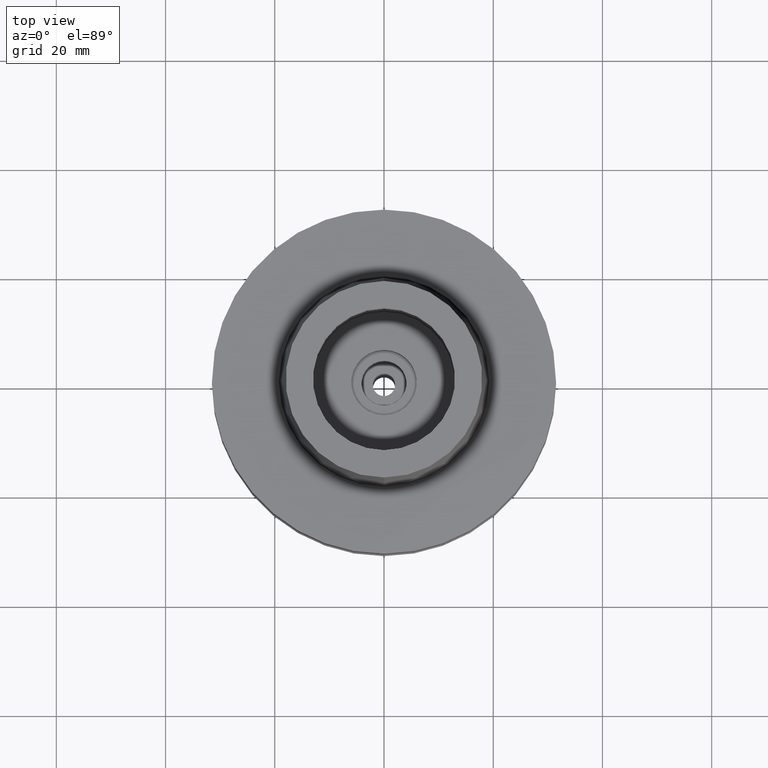
[diagram: clean part render]
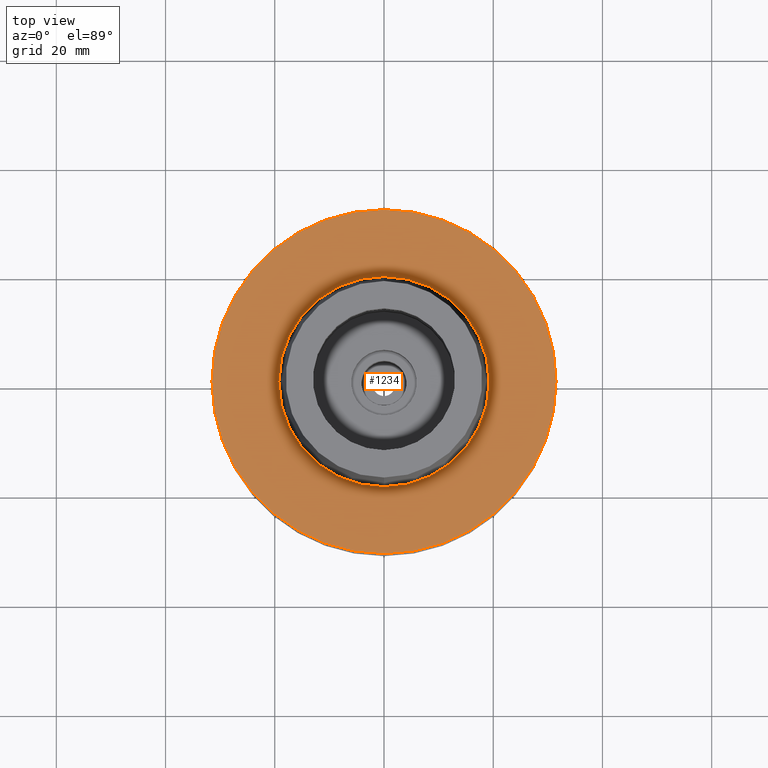
[diagram: same view with one face highlighted and labeled with its STEP entity id]
A machine part, top view. The second image highlights one B-rep face of the part: STEP entity #1234.
In plain terms, the highlighted planar face has unit normal (0, 0, -1).
Its self-contained STEP definition (entity closure, byte-faithful):
#34 = DIRECTION ( 'NONE',  ( 0.0000000000000000000, 0.0000000000000000000, 1.000000000000000000 ) ) ;
#118 = DIRECTION ( 'NONE',  ( 0.0000000000000000000, 1.000000000000000000, 0.0000000000000000000 ) ) ;
#269 = VERTEX_POINT ( 'NONE', #1361 ) ;
#546 = EDGE_LOOP ( 'NONE', ( #663, #1263 ) ) ;
#663 = ORIENTED_EDGE ( 'NONE', *, *, #1505, .F. ) ;
#700 = VERTEX_POINT ( 'NONE', #1458 ) ;
#758 = ORIENTED_EDGE ( 'NONE', *, *, #1671, .F. ) ;
#804 = EDGE_CURVE ( 'NONE', #1738, #2519, #2146, .T. ) ;
#846 = AXIS2_PLACEMENT_3D ( 'NONE', #2247, #1566, #2042 ) ;
#869 = DIRECTION ( 'NONE',  ( 0.0000000000000000000, 1.000000000000000000, 0.0000000000000000000 ) ) ;
#961 = CARTESIAN_POINT ( 'NONE',  ( 0.0000000000000000000, 1.589591545292999879E-14, 3.907985046680999726E-14 ) ) ;
#973 = DIRECTION ( 'NONE',  ( 0.0000000000000000000, -1.000000000000000000, 0.0000000000000000000 ) ) ;
#1051 = CARTESIAN_POINT ( 'NONE',  ( 0.0000000000000000000, -31.50000000000000000, 3.907985046680999726E-14 ) ) ;
#1066 = CARTESIAN_POINT ( 'NONE',  ( 0.0000000000000000000, 1.377727649040999975E-14, 2.273736754432000254E-13 ) ) ;
#1143 = EDGE_CURVE ( 'NONE', #269, #700, #1978, .T. ) ;
#1207 = FACE_BOUND ( 'NONE', #546, .T. ) ;
#1234 = ADVANCED_FACE ( 'NONE', ( #2050, #1207 ), #1991, .F. ) ;
#1263 = ORIENTED_EDGE ( 'NONE', *, *, #1143, .F. ) ;
#1361 = CARTESIAN_POINT ( 'NONE',  ( 0.0000000000000000000, -19.24999954280000125, 2.273736754432000254E-13 ) ) ;
#1458 = CARTESIAN_POINT ( 'NONE',  ( 0.0000000000000000000, 19.24999954280000125, 0.0000000000000000000 ) ) ;
#1505 = EDGE_CURVE ( 'NONE', #700, #269, #2443, .T. ) ;
#1546 = DIRECTION ( 'NONE',  ( 0.0000000000000000000, 0.0000000000000000000, -1.000000000000000000 ) ) ;
#1566 = DIRECTION ( 'NONE',  ( 0.0000000000000000000, 0.0000000000000000000, 1.000000000000000000 ) ) ;
#1583 = CARTESIAN_POINT ( 'NONE',  ( 0.0000000000000000000, 1.224646799146999965E-14, 0.0000000000000000000 ) ) ;
#1671 = EDGE_CURVE ( 'NONE', #2519, #1738, #2386, .T. ) ;
#1738 = VERTEX_POINT ( 'NONE', #1051 ) ;
#1818 = CARTESIAN_POINT ( 'NONE',  ( 0.0000000000000000000, 1.589591545292999879E-14, 3.907985046680999726E-14 ) ) ;
#1871 = CARTESIAN_POINT ( 'NONE',  ( 0.0000000000000000000, 31.50000000000000000, 1.657933050107000251E-14 ) ) ;
#1872 = AXIS2_PLACEMENT_3D ( 'NONE', #1066, #34, #869 ) ;
#1978 = CIRCLE ( 'NONE', #846, 19.24999954280000125 ) ;
#1991 = PLANE ( 'NONE',  #2249 ) ;
#2042 = DIRECTION ( 'NONE',  ( 0.0000000000000000000, -1.000000000000000000, 0.0000000000000000000 ) ) ;
#2050 = FACE_OUTER_BOUND ( 'NONE', #2085, .T. ) ;
#2085 = EDGE_LOOP ( 'NONE', ( #758, #2689 ) ) ;
#2146 = CIRCLE ( 'NONE', #2460, 31.50000000000000000 ) ;
#2169 = AXIS2_PLACEMENT_3D ( 'NONE', #1818, #1546, #118 ) ;
#2247 = CARTESIAN_POINT ( 'NONE',  ( 0.0000000000000000000, 1.377727649040999975E-14, 2.273736754432000254E-13 ) ) ;
#2249 = AXIS2_PLACEMENT_3D ( 'NONE', #1583, #2416, #973 ) ;
#2386 = CIRCLE ( 'NONE', #2169, 31.50000000000000000 ) ;
#2416 = DIRECTION ( 'NONE',  ( 0.0000000000000000000, 0.0000000000000000000, -1.000000000000000000 ) ) ;
#2443 = CIRCLE ( 'NONE', #1872, 19.24999954280000125 ) ;
#2460 = AXIS2_PLACEMENT_3D ( 'NONE', #961, #2645, #2676 ) ;
#2519 = VERTEX_POINT ( 'NONE', #1871 ) ;
#2645 = DIRECTION ( 'NONE',  ( 0.0000000000000000000, 0.0000000000000000000, -1.000000000000000000 ) ) ;
#2676 = DIRECTION ( 'NONE',  ( 0.0000000000000000000, -1.000000000000000000, 0.0000000000000000000 ) ) ;
#2689 = ORIENTED_EDGE ( 'NONE', *, *, #804, .F. ) ;